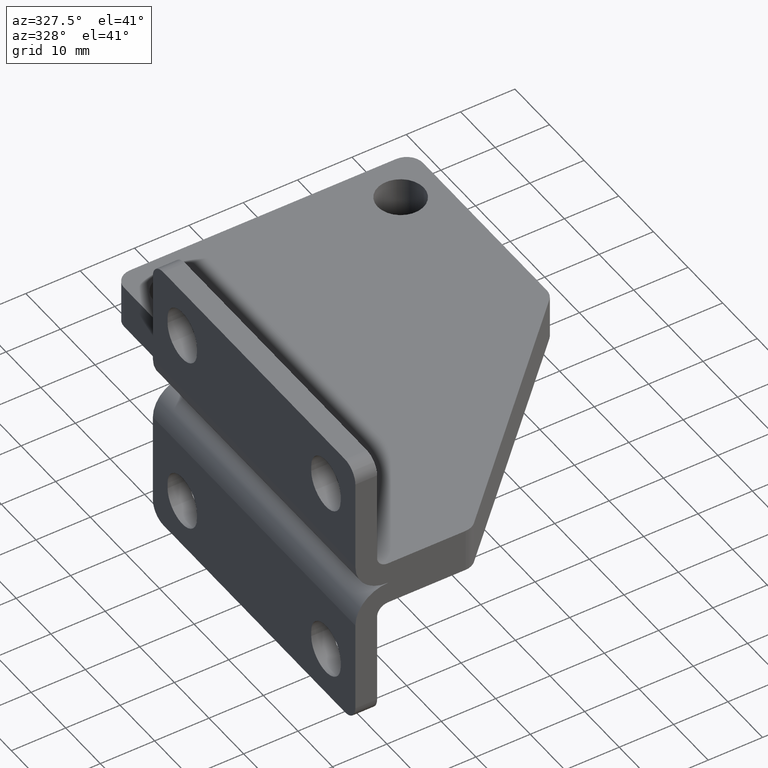
[diagram: clean part render]
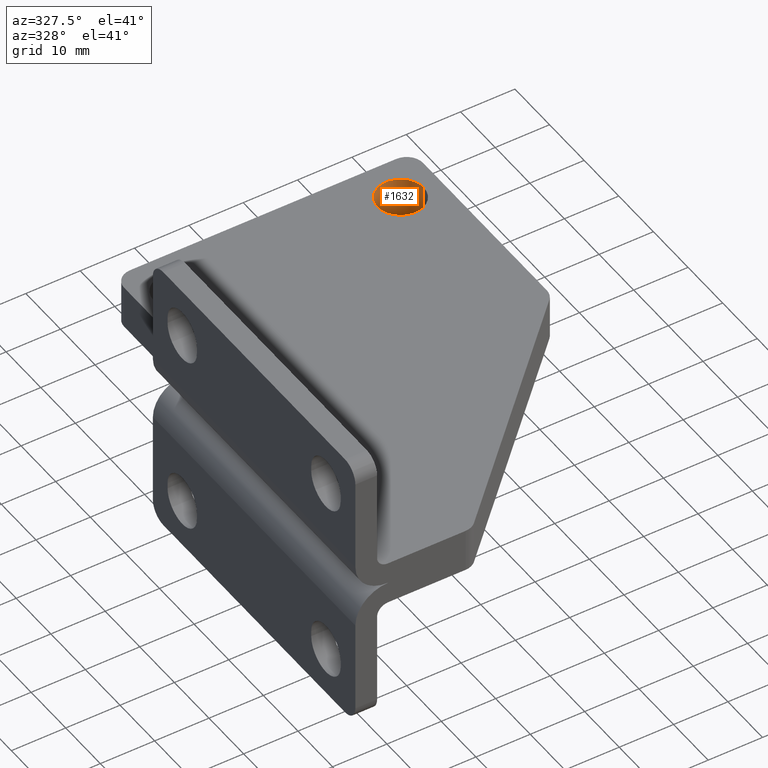
[diagram: same view with one face highlighted and labeled with its STEP entity id]
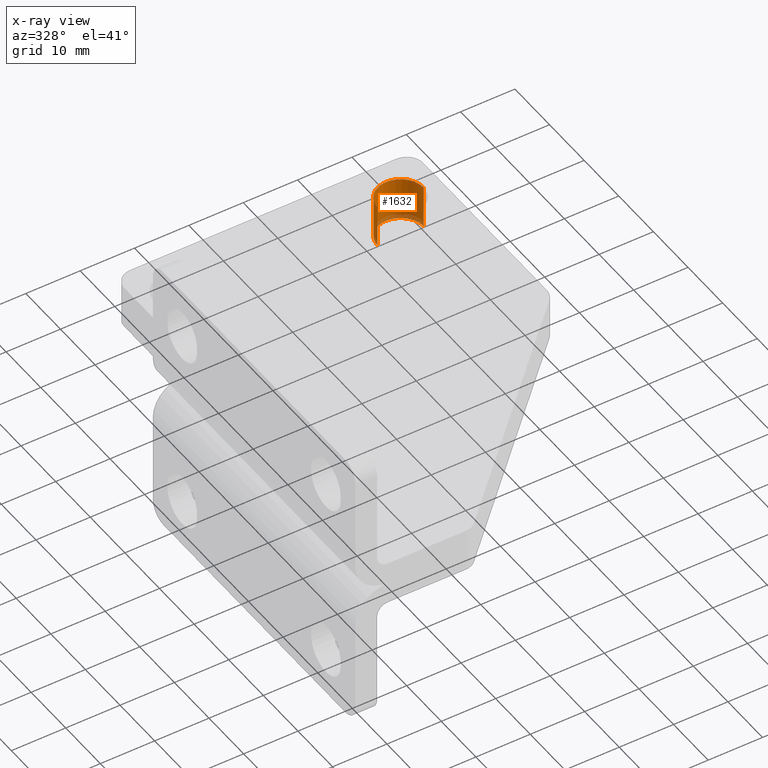
[diagram: x-ray of the same camera — body ghosted, the highlighted face saturated]
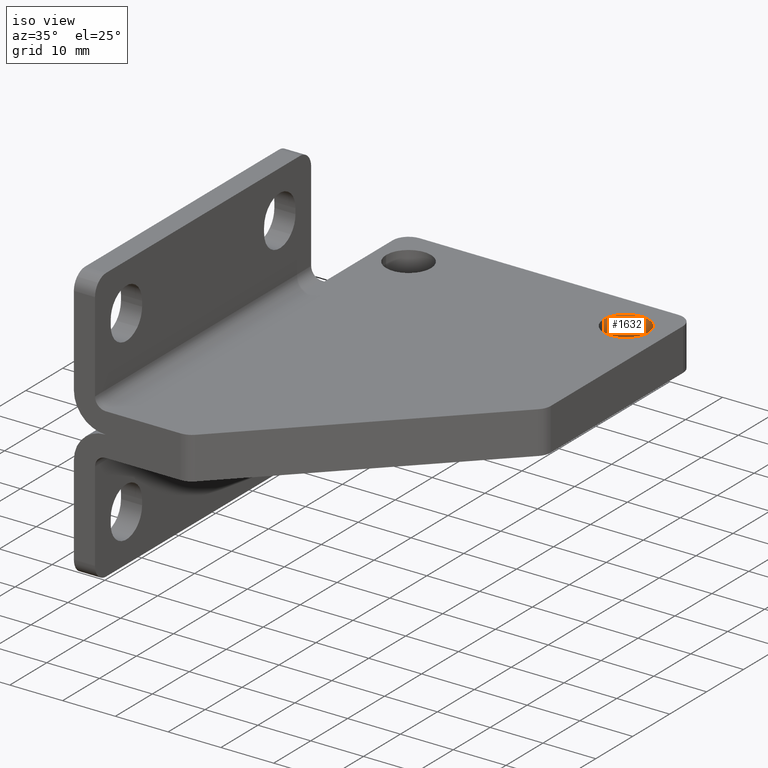
[diagram: same view with one face highlighted and labeled with its STEP entity id]
A machine part, auxiliary view. The second image highlights one B-rep face of the part: STEP entity #1632.
The next image is the same camera in x-ray: the body ghosted, the highlighted face saturated — about 10% of this face is hidden behind the body in this view.
A second angle (iso view) of the same face is appended — the face is thin or edge-on in the first view.
In plain terms, the highlighted face is a freeform B-spline surface patch.
Its self-contained STEP definition (entity closure, byte-faithful):
#322=CARTESIAN_POINT('',(5.947231242079378,67.195288139688969,-4.000000000000004));
#323=VERTEX_POINT('',#322);
#324=CARTESIAN_POINT('',(5.947231242079369,67.195288139689012,4.0));
#325=VERTEX_POINT('',#324);
#326=CARTESIAN_POINT('',(5.947231242079378,67.195288139688969,-4.000000000000004));
#327=DIRECTION('',(0.0,0.0,1.0));
#328=VECTOR('',#327,8.000000000000004);
#329=LINE('',#326,#328);
#330=EDGE_CURVE('',#323,#325,#329,.T.);
#332=CARTESIAN_POINT('',(-2.552768757920620,67.195288139689012,-4.000000000000004));
#333=VERTEX_POINT('',#332);
#341=CARTESIAN_POINT('',(-2.552768757920629,67.195288139689012,4.0));
#342=VERTEX_POINT('',#341);
#343=CARTESIAN_POINT('',(-2.552768757920629,67.195288139689012,4.0));
#344=DIRECTION('',(0.0,0.0,-1.0));
#345=VECTOR('',#344,8.000000000000004);
#346=LINE('',#343,#345);
#347=EDGE_CURVE('',#342,#333,#346,.T.);
#1503=CARTESIAN_POINT('',(1.697231242079380,67.195288139688969,-4.000000000000004));
#1504=DIRECTION('',(0.0,0.0,-1.0));
#1505=DIRECTION('',(1.0,0.0,0.0));
#1506=AXIS2_PLACEMENT_3D('',#1503,#1504,#1505);
#1507=CIRCLE('',#1506,4.250000000000000);
#1508=EDGE_CURVE('',#333,#323,#1507,.T.);
#1594=CARTESIAN_POINT('',(-2.552768757920629,67.195288139689012,4.0));
#1595=CARTESIAN_POINT('',(-2.552768757920629,67.195288139689012,-4.000000000000004));
#1596=CARTESIAN_POINT('',(-2.552768757920628,62.945288139689005,4.0));
#1597=CARTESIAN_POINT('',(-2.552768757920628,62.945288139689005,-4.000000000000004));
#1598=CARTESIAN_POINT('',(1.697231242079371,62.945288139689012,4.0));
#1599=CARTESIAN_POINT('',(1.697231242079371,62.945288139689012,-4.000000000000004));
#1600=CARTESIAN_POINT('',(5.947231242079370,62.945288139689005,4.0));
#1601=CARTESIAN_POINT('',(5.947231242079370,62.945288139689005,-4.000000000000004));
#1602=CARTESIAN_POINT('',(5.947231242079371,67.195288139689012,4.0));
#1603=CARTESIAN_POINT('',(5.947231242079371,67.195288139689012,-4.000000000000004));
#1604=CARTESIAN_POINT('',(5.947231242079370,71.445288139689012,4.0));
#1605=CARTESIAN_POINT('',(5.947231242079370,71.445288139689012,-4.000000000000004));
#1606=CARTESIAN_POINT('',(1.697231242079371,71.445288139689012,4.0));
#1607=CARTESIAN_POINT('',(1.697231242079371,71.445288139689012,-4.000000000000004));
#1608=CARTESIAN_POINT('',(-2.552768757920628,71.445288139689012,4.0));
#1609=CARTESIAN_POINT('',(-2.552768757920628,71.445288139689012,-4.000000000000004));
#1610=CARTESIAN_POINT('',(-2.552768757920629,67.195288139689012,4.0));
#1611=CARTESIAN_POINT('',(-2.552768757920629,67.195288139689012,-4.000000000000004));
#1619=(BOUNDED_SURFACE()B_SPLINE_SURFACE(1,2,((#1594,#1596,#1598,#1600,#1602,#1604,#1606,#1608,#1610),(#1595,#1597,#1599,#1601,#1603,#1605,#1607,#1609,#1611)),.UNSPECIFIED.,.F.,.T.,.U.)B_SPLINE_SURFACE_WITH_KNOTS((2,2),(3,2,2,2,3),(-0.941176470588235,0.941176470588236),(0.0,6.675884388878311,13.351768777756622,20.027653166634931,26.703537555513243),.UNSPECIFIED.)GEOMETRIC_REPRESENTATION_ITEM()RATIONAL_B_SPLINE_SURFACE(((1.0,0.707106781186548,1.0,0.707106781186548,1.0,0.707106781186548,1.0,0.707106781186548,1.0),(1.0,0.707106781186548,1.0,0.707106781186548,1.0,0.707106781186548,1.0,0.707106781186548,1.0)))REPRESENTATION_ITEM('')SURFACE());
#1620=ORIENTED_EDGE('',*,*,#330,.T.);
#1621=CARTESIAN_POINT('',(1.697231242079371,67.195288139689012,4.0));
#1622=DIRECTION('',(0.0,0.0,-1.0));
#1623=DIRECTION('',(1.0,0.0,0.0));
#1624=AXIS2_PLACEMENT_3D('',#1621,#1622,#1623);
#1625=CIRCLE('',#1624,4.250000000000000);
#1626=EDGE_CURVE('',#342,#325,#1625,.T.);
#1627=ORIENTED_EDGE('',*,*,#1626,.F.);
#1628=ORIENTED_EDGE('',*,*,#347,.T.);
#1629=ORIENTED_EDGE('',*,*,#1508,.T.);
#1630=EDGE_LOOP('',(#1620,#1627,#1628,#1629));
#1631=FACE_OUTER_BOUND('',#1630,.T.);
#1632=ADVANCED_FACE('',(#1631),#1619,.F.);